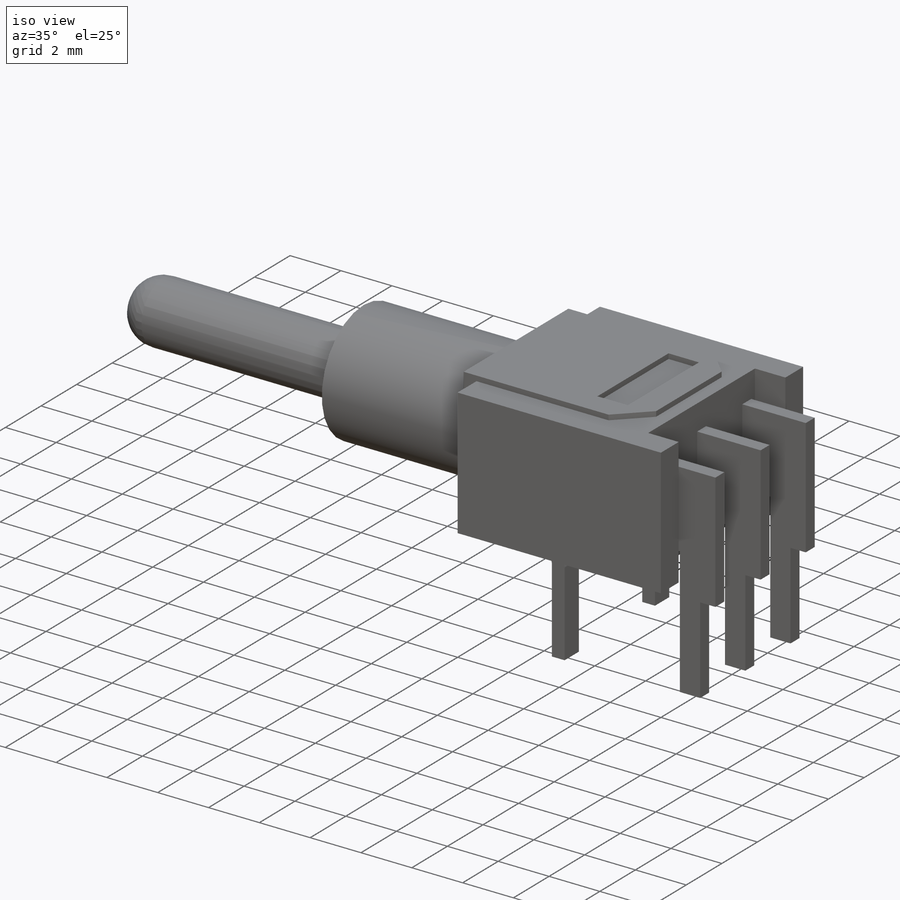
[diagram: iso view]
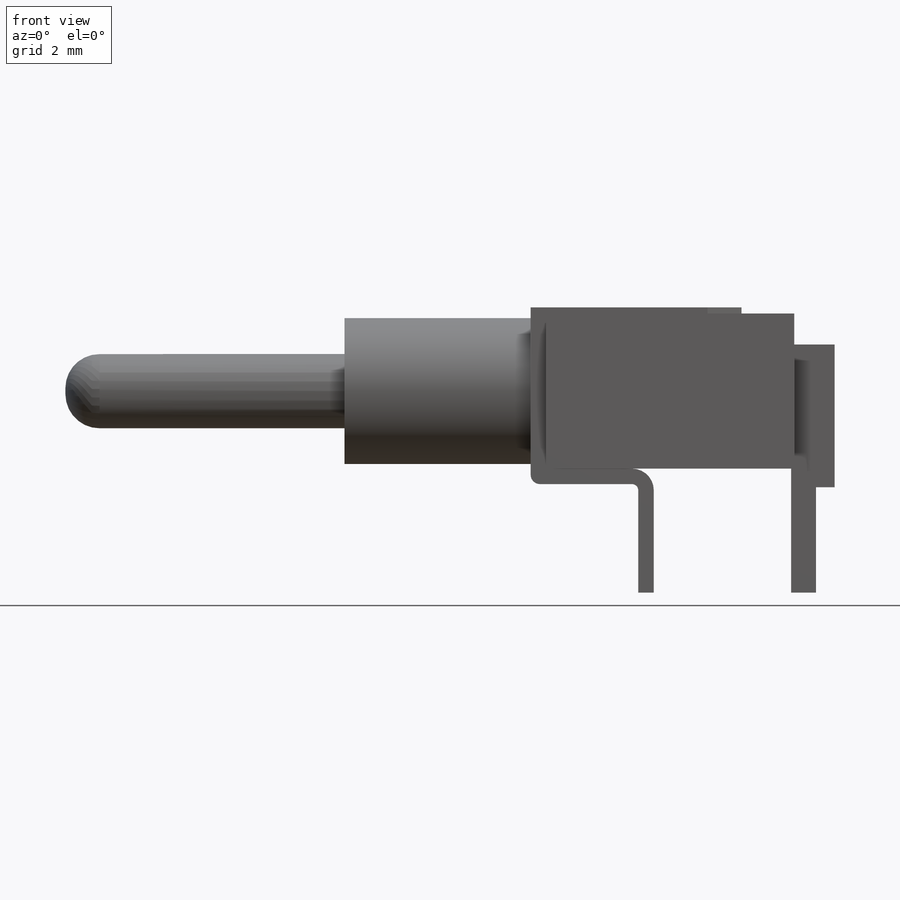
[diagram: front view]
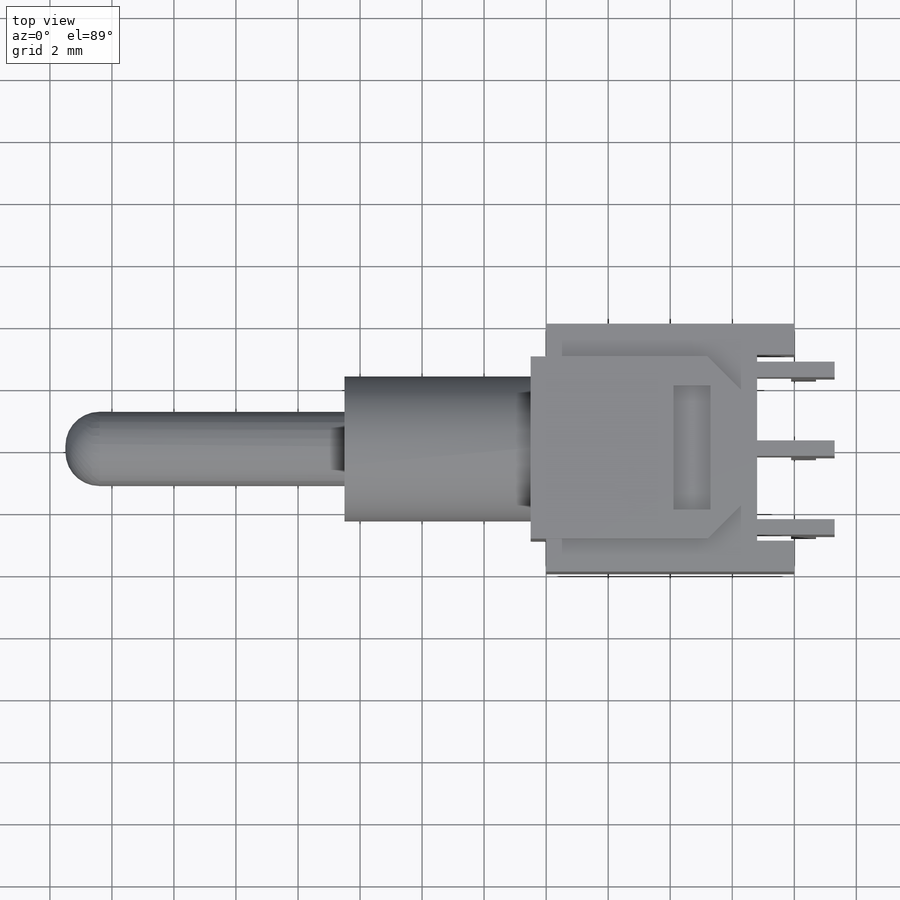
[diagram: top view]
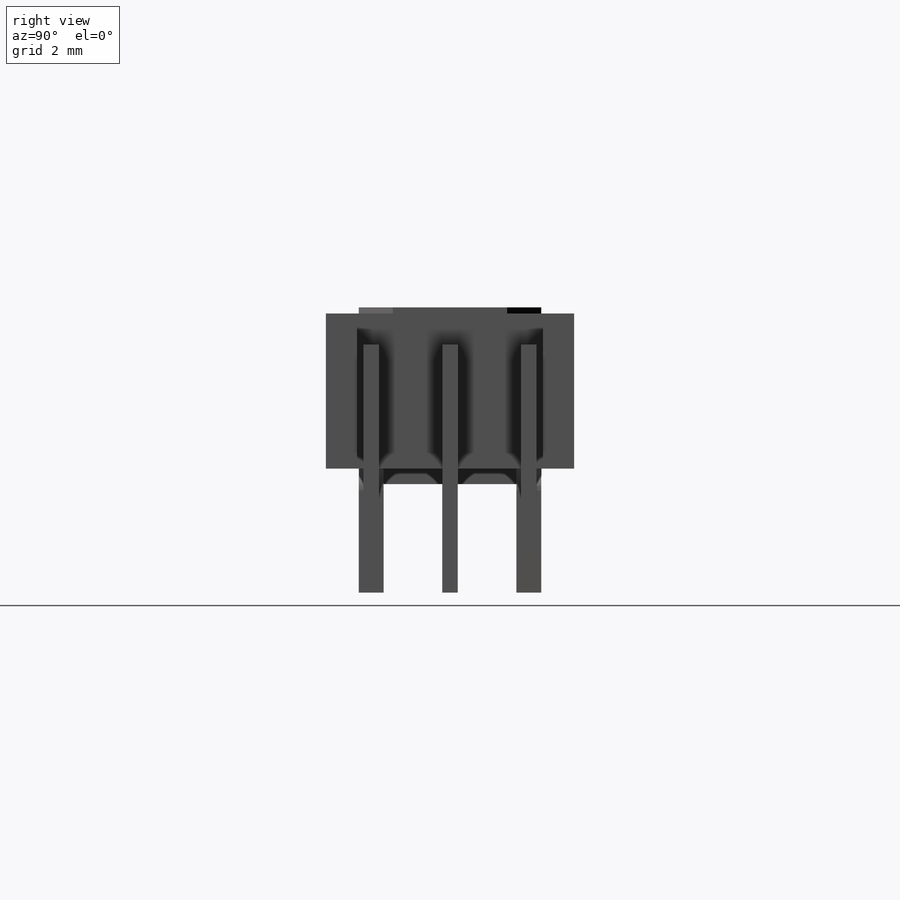
[diagram: right view]
SOLIDWORKS PART (.sldprt)
format: sldprt  version: not decoded by parser v0  size: 359,936 bytes
history: native  units: mm
features: sketch x7, extrude x6, plane x4, pattern_linear x2, material x1, cut_extrude x1, fillet x1 (+8 scaffold rows collapsed)
feature tree (30):
  scaffold x8  (default folders/planes/origin — collapsed)
  material  "Matériau <non spécifié>"
  plane  "Plan de face"
  plane  "Plan de dessus"
  plane  "Plan de droite"
  sketch  "Esquisse1"  dims[D1=4.0mm D2=1.2mm D3=1.0mm]
  extrude  "Boss.-Extru.1"  Depth=5mm
  plane  "Plan1"  Offset=4mm
  sketch  "Esquisse4"  dims[D1=1.2mm D2=1.0mm D3=1.3mm D4=0.8mm D5=4.0mm D6=0.6mm D7=0.6mm D8=3.0mm]
  extrude  "Boss.-Extru.2"  Depth=0.5mm
  sketch  "Esquisse5"  dims[D7=0.2mm D8=0.7mm D9=0.3mm D1=0.25mm D2=0.5mm D3=5.08mm D4=0.5mm D5=0.5mm D6=0.2mm]
  extrude  "Boss.-Extru.3"  Depth=5.88mm
  sketch  "Esquisse6"  dims[D1=0.8mm D2=0.8mm]
  cut_extrude  "Enlèv. mat.-Extru.1"  Depth=0.7mm
  sketch  "Esquisse7"  dims[D1=1.35mm]
  extrude  "Boss.-Extru.4"  Depth=6mm
  sketch  "Esquisse8"  dims[D1=~1.053766mm]
  extrude  "Boss.-Extru.5"  Depth=15mm
  fillet  "Congé1"  Radius=1.1mm
  sketch  "Esquisse9"  dims[c1.D1=2.94mm c1.D2=0.5mm c1.D3=1.2mm c1.D4=1.0mm c1.D5=2.0mm c1.D6=~1.784731mm c2.D6=45.0deg c2.D7=1.1mm]
  extrude  "Boss.-Extru.6"  Depth=0.2mm
  pattern_linear  "Répétition linéaire1"  Count1=2 Count2=1 Spacing1=2.54mm Spacing2=10mm
  pattern_linear  "Répétition linéaire2"  Count1=2 Count2=1 Spacing1=2.54mm Spacing2=10mm
decode coverage: 17 of 17 modeling features carry decoded parameters
note: ~ marks probable driven/reference dimensions
note: suppression state not decoded; provenance and decode notes live in map.json
